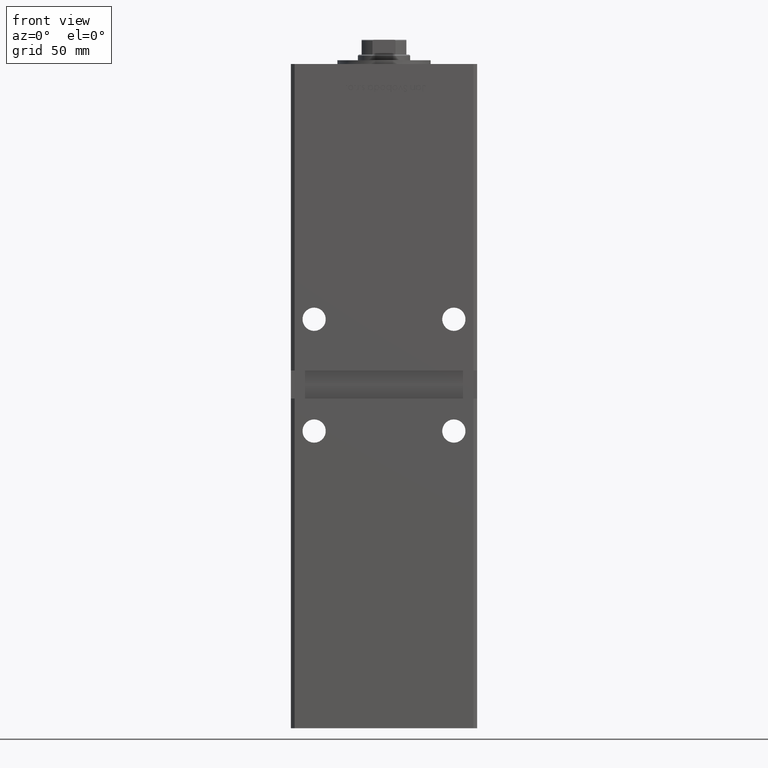
[diagram: clean part render]
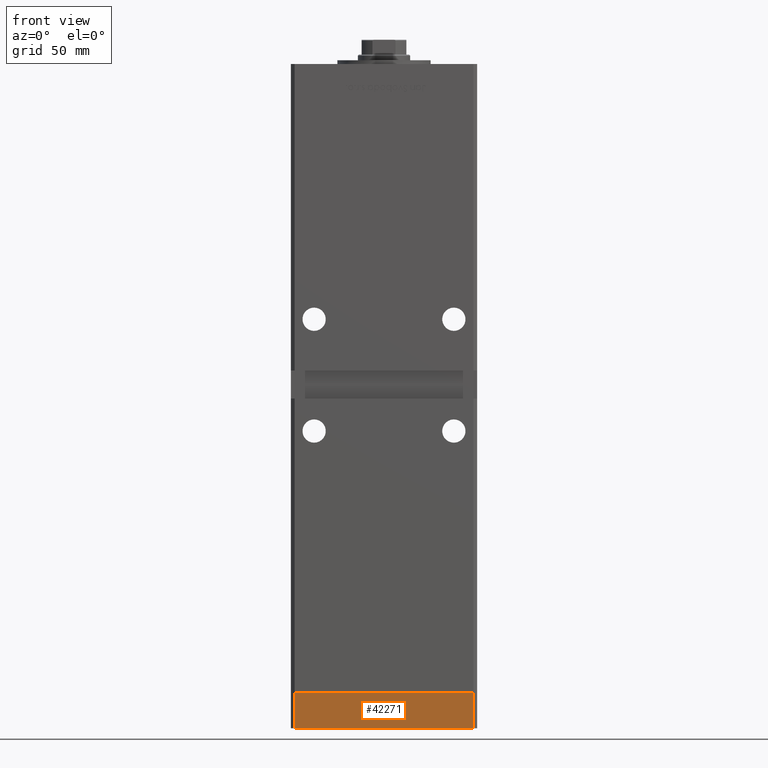
[diagram: same view with one face highlighted and labeled with its STEP entity id]
A machine part, front view. The second image highlights one B-rep face of the part: STEP entity #42271.
In plain terms, the highlighted planar face has unit normal (0, -1, -0).
Its self-contained STEP definition (entity closure, byte-faithful):
#920 = CARTESIAN_POINT ( 'NONE',  ( -47.99999999999999289, -43.50000000000001421, -19.00000000000000000 ) ) ;
#2495 = LINE ( 'NONE', #21850, #28377 ) ;
#3263 = VECTOR ( 'NONE', #50899, 1000.000000000000000 ) ;
#5206 = LINE ( 'NONE', #920, #26621 ) ;
#10241 = FACE_OUTER_BOUND ( 'NONE', #35719, .T. ) ;
#11658 = EDGE_CURVE ( 'NONE', #52684, #50759, #21882, .T. ) ;
#11825 = CARTESIAN_POINT ( 'NONE',  ( -47.99999999999999289, -43.50000000000001421, 0.000000000000000000 ) ) ;
#13521 = ORIENTED_EDGE ( 'NONE', *, *, #11658, .T. ) ;
#16711 = EDGE_CURVE ( 'NONE', #18170, #52684, #5206, .T. ) ;
#17830 = CARTESIAN_POINT ( 'NONE',  ( 47.99999999999999289, -43.50000000000001421, -19.00000000000000000 ) ) ;
#18170 = VERTEX_POINT ( 'NONE', #51507 ) ;
#19694 = EDGE_CURVE ( 'NONE', #18170, #34328, #2495, .T. ) ;
#21850 = CARTESIAN_POINT ( 'NONE',  ( -47.99999999999999289, -43.50000000000001421, -19.00000000000000000 ) ) ;
#21882 = LINE ( 'NONE', #17830, #3263 ) ;
#22159 = ORIENTED_EDGE ( 'NONE', *, *, #16711, .T. ) ;
#22353 = DIRECTION ( 'NONE',  ( 0.000000000000000000, -1.000000000000000000, 0.000000000000000000 ) ) ;
#26563 = EDGE_CURVE ( 'NONE', #34328, #50759, #30930, .T. ) ;
#26621 = VECTOR ( 'NONE', #37988, 1000.000000000000000 ) ;
#28377 = VECTOR ( 'NONE', #38227, 1000.000000000000000 ) ;
#30668 = DIRECTION ( 'NONE',  ( 1.000000000000000000, 0.000000000000000000, 0.000000000000000000 ) ) ;
#30930 = LINE ( 'NONE', #38709, #48199 ) ;
#33188 = DIRECTION ( 'NONE',  ( 0.000000000000000000, -0.000000000000000000, -1.000000000000000000 ) ) ;
#34328 = VERTEX_POINT ( 'NONE', #11825 ) ;
#35719 = EDGE_LOOP ( 'NONE', ( #41326, #43894, #22159, #13521 ) ) ;
#37988 = DIRECTION ( 'NONE',  ( 1.000000000000000000, 0.000000000000000000, 0.000000000000000000 ) ) ;
#38227 = DIRECTION ( 'NONE',  ( 0.000000000000000000, 0.000000000000000000, 1.000000000000000000 ) ) ;
#38709 = CARTESIAN_POINT ( 'NONE',  ( -47.99999999999999289, -43.50000000000001421, 0.000000000000000000 ) ) ;
#41326 = ORIENTED_EDGE ( 'NONE', *, *, #26563, .F. ) ;
#42271 = ADVANCED_FACE ( 'NONE', ( #10241 ), #43031, .T. ) ;
#43031 = PLANE ( 'NONE',  #47256 ) ;
#43894 = ORIENTED_EDGE ( 'NONE', *, *, #19694, .F. ) ;
#45574 = CARTESIAN_POINT ( 'NONE',  ( 47.99999999999999289, -43.50000000000001421, 0.000000000000000000 ) ) ;
#47256 = AXIS2_PLACEMENT_3D ( 'NONE', #49838, #22353, #33188 ) ;
#48199 = VECTOR ( 'NONE', #30668, 1000.000000000000000 ) ;
#48232 = CARTESIAN_POINT ( 'NONE',  ( 47.99999999999999289, -43.50000000000001421, -19.00000000000000000 ) ) ;
#49838 = CARTESIAN_POINT ( 'NONE',  ( -47.99999999999999289, -43.50000000000001421, -19.00000000000000000 ) ) ;
#50759 = VERTEX_POINT ( 'NONE', #45574 ) ;
#50899 = DIRECTION ( 'NONE',  ( 0.000000000000000000, 0.000000000000000000, 1.000000000000000000 ) ) ;
#51507 = CARTESIAN_POINT ( 'NONE',  ( -47.99999999999999289, -43.50000000000001421, -19.00000000000000000 ) ) ;
#52684 = VERTEX_POINT ( 'NONE', #48232 ) ;